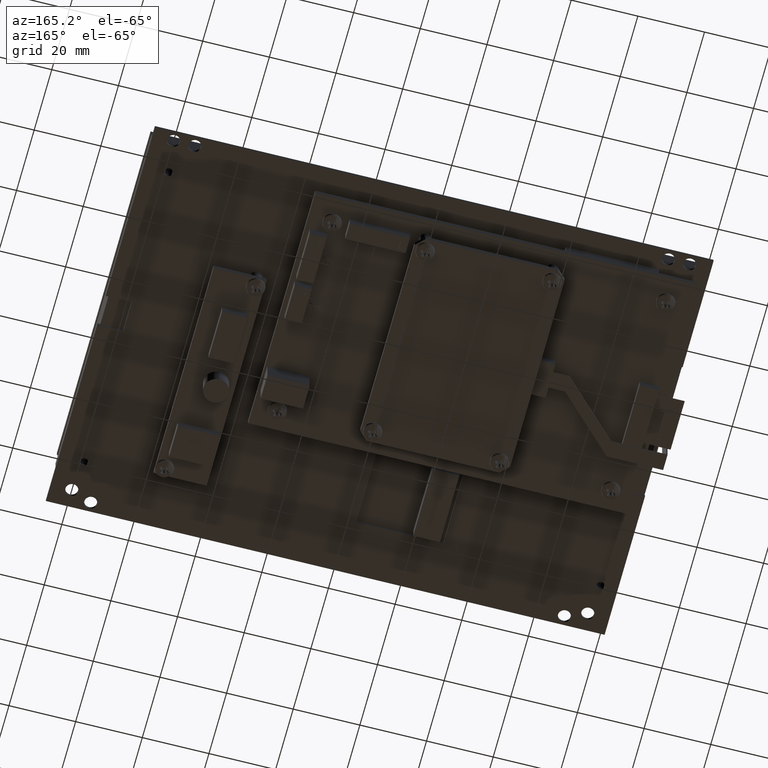
[diagram: clean part render]
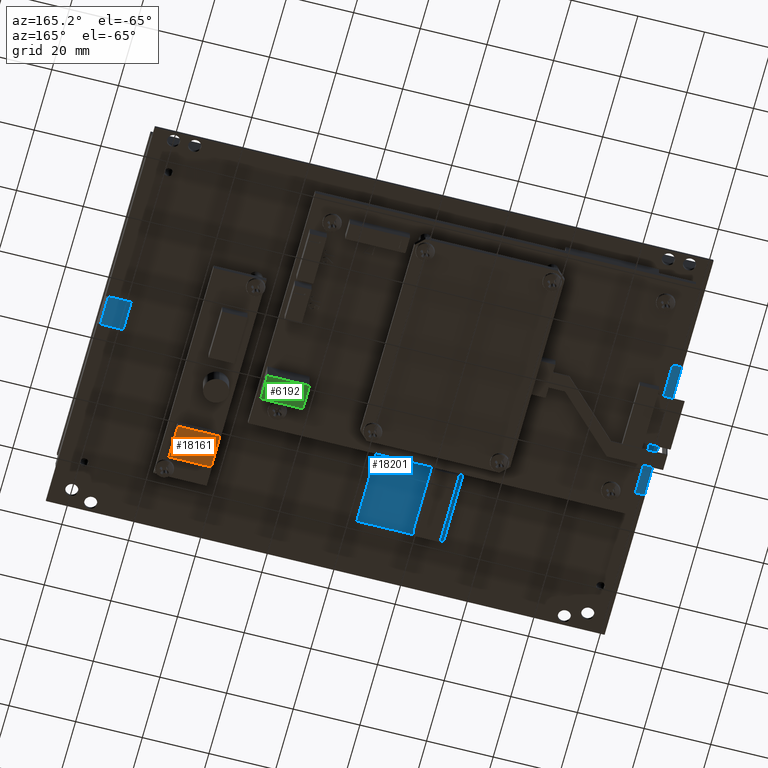
[diagram: same view with three faces highlighted in distinct colors, each labeled with its STEP entity id]
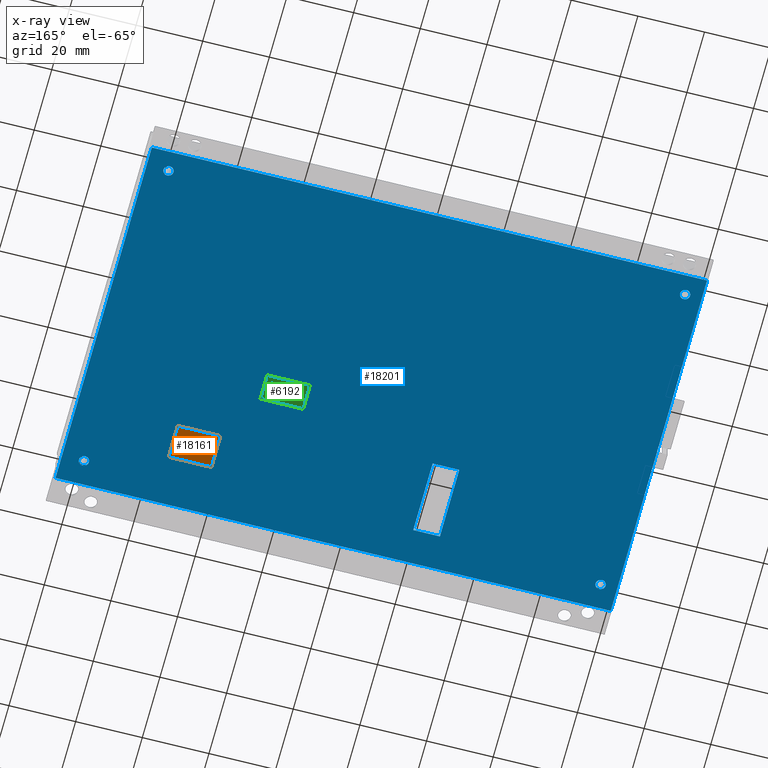
[diagram: x-ray of the same camera — body ghosted, the three highlighted faces saturated]
A machine part, auxiliary view with three faces highlighted in distinct colors.
The next image is the same camera in x-ray (body ghosted, the three faces saturated) — at least one of them is partly hidden behind the body in this view.
Their STEP definitions:

[orange] entity #18161 — the highlighted planar face has unit normal (-0, -0, 1).
#2835 = CARTESIAN_POINT ( 'NONE',  ( 0.2124999999999999900, 0.1890000000000000600, -0.6375000000000000700 ) ) ;
#4122 = CARTESIAN_POINT ( 'NONE',  ( -0.2874999999999998700, 0.1889999999999999700, -1.037500000000000100 ) ) ;
#5367 = VERTEX_POINT ( 'NONE', #2835 ) ;
#5932 = AXIS2_PLACEMENT_3D ( 'NONE', #12828, #12839, #12840 ) ;
#6475 = VECTOR ( 'NONE', #11934, 39.37007874015748100 ) ;
#6478 = VECTOR ( 'NONE', #11954, 39.37007874015748100 ) ;
#6480 = VECTOR ( 'NONE', #11967, 39.37007874015748100 ) ;
#6481 = VECTOR ( 'NONE', #11974, 39.37007874015748100 ) ;
#7542 = VERTEX_POINT ( 'NONE', #4122 ) ;
#8039 = ORIENTED_EDGE ( 'NONE', *, *, #17830, .T. ) ;
#8040 = ORIENTED_EDGE ( 'NONE', *, *, #17833, .T. ) ;
#8041 = ORIENTED_EDGE ( 'NONE', *, *, #17835, .T. ) ;
#8042 = ORIENTED_EDGE ( 'NONE', *, *, #17836, .T. ) ;
#10751 = CARTESIAN_POINT ( 'NONE',  ( -0.2874999999999998700, 0.1890000000000000600, -0.6375000000000000700 ) ) ;
#10753 = CARTESIAN_POINT ( 'NONE',  ( 0.2124999999999999900, 0.1889999999999999700, -1.037500000000000100 ) ) ;
#11928 = LINE ( 'NONE', #11932, #6475 ) ;
#11932 = CARTESIAN_POINT ( 'NONE',  ( 0.2124999999999999900, 0.1889999999999999700, -1.037500000000000100 ) ) ;
#11934 = DIRECTION ( 'NONE',  ( -7.360038173205668400E-032, 0.0000000000000000000, -1.000000000000000000 ) ) ;
#11949 = LINE ( 'NONE', #11952, #6478 ) ;
#11952 = CARTESIAN_POINT ( 'NONE',  ( 0.2124999999999999900, 0.1889999999999999700, -1.037500000000000100 ) ) ;
#11954 = DIRECTION ( 'NONE',  ( -1.000000000000000000, 0.0000000000000000000, -7.360038173205668400E-032 ) ) ;
#11962 = LINE ( 'NONE', #11965, #6480 ) ;
#11965 = CARTESIAN_POINT ( 'NONE',  ( -0.2874999999999998700, 0.1889999999999999700, -1.037500000000000100 ) ) ;
#11967 = DIRECTION ( 'NONE',  ( 7.360038173205668400E-032, 0.0000000000000000000, 1.000000000000000000 ) ) ;
#11969 = LINE ( 'NONE', #11972, #6481 ) ;
#11972 = CARTESIAN_POINT ( 'NONE',  ( 0.2124999999999999900, 0.1890000000000000600, -0.6375000000000000700 ) ) ;
#11974 = DIRECTION ( 'NONE',  ( 1.000000000000000000, 0.0000000000000000000, 7.360038173205668400E-032 ) ) ;
#12828 = CARTESIAN_POINT ( 'NONE',  ( 0.2124999999999999900, 0.1890000000000000600, -0.6375000000000000700 ) ) ;
#12836 = FACE_OUTER_BOUND ( 'NONE', #14484, .T. ) ;
#12837 = PLANE ( 'NONE',  #5932 ) ;
#12839 = DIRECTION ( 'NONE',  ( 0.0000000000000000000, -1.000000000000000000, -0.0000000000000000000 ) ) ;
#12840 = DIRECTION ( 'NONE',  ( -7.360038173205668400E-032, 0.0000000000000000000, -1.000000000000000000 ) ) ;
#14484 = EDGE_LOOP ( 'NONE', ( #8039, #8040, #8041, #8042 ) ) ;
#14530 = VERTEX_POINT ( 'NONE', #10751 ) ;
#14531 = VERTEX_POINT ( 'NONE', #10753 ) ;
#17830 = EDGE_CURVE ( 'NONE', #5367, #14531, #11928, .T. ) ;
#17833 = EDGE_CURVE ( 'NONE', #14531, #7542, #11949, .T. ) ;
#17835 = EDGE_CURVE ( 'NONE', #7542, #14530, #11962, .T. ) ;
#17836 = EDGE_CURVE ( 'NONE', #14530, #5367, #11969, .T. ) ;
#18161 = ADVANCED_FACE ( 'NONE', ( #12836 ), #12837, .F. ) ;

[blue] entity #18201 — the highlighted planar face has unit normal (0, 0, 1).
#1269 = CIRCLE ( 'NONE', #1280, 0.05905511811023627500 ) ;
#1280 = AXIS2_PLACEMENT_3D ( 'NONE', #10789, #10791, #10793 ) ;
#1281 = CIRCLE ( 'NONE', #1286, 0.05905511811023627500 ) ;
#1286 = AXIS2_PLACEMENT_3D ( 'NONE', #10819, #10821, #10823 ) ;
#1287 = CIRCLE ( 'NONE', #1292, 0.05905511811023627500 ) ;
#1292 = AXIS2_PLACEMENT_3D ( 'NONE', #10849, #10851, #10853 ) ;
#1293 = CIRCLE ( 'NONE', #1298, 0.05905511811023627500 ) ;
#1296 = VECTOR ( 'NONE', #10894, 39.37007874015748100 ) ;
#1298 = AXIS2_PLACEMENT_3D ( 'NONE', #10880, #10882, #10884 ) ;
#1299 = VECTOR ( 'NONE', #10900, 39.37007874015748100 ) ;
#1300 = VECTOR ( 'NONE', #10913, 39.37007874015748100 ) ;
#1301 = VECTOR ( 'NONE', #10907, 39.37007874015748100 ) ;
#1302 = CIRCLE ( 'NONE', #1305, 0.05905511811023627500 ) ;
#1304 = CIRCLE ( 'NONE', #1307, 0.05905511811023627500 ) ;
#1305 = AXIS2_PLACEMENT_3D ( 'NONE', #10919, #10921, #10923 ) ;
#1306 = CIRCLE ( 'NONE', #1309, 0.05905511811023627500 ) ;
#1307 = AXIS2_PLACEMENT_3D ( 'NONE', #10927, #10929, #10931 ) ;
#1308 = CIRCLE ( 'NONE', #1311, 0.05905511811023627500 ) ;
#1309 = AXIS2_PLACEMENT_3D ( 'NONE', #10937, #10939, #10941 ) ;
#1310 = VECTOR ( 'NONE', #10954, 39.37007874015748100 ) ;
#1311 = AXIS2_PLACEMENT_3D ( 'NONE', #10947, #10949, #10951 ) ;
#1312 = VECTOR ( 'NONE', #10961, 39.37007874015748100 ) ;
#1313 = VECTOR ( 'NONE', #10968, 39.37007874015748100 ) ;
#1314 = VECTOR ( 'NONE', #10975, 39.37007874015748100 ) ;
#5972 = AXIS2_PLACEMENT_3D ( 'NONE', #13044, #13048, #13049 ) ;
#8412 = VERTEX_POINT ( 'NONE', #9325 ) ;
#8420 = VERTEX_POINT ( 'NONE', #9333 ) ;
#8427 = VERTEX_POINT ( 'NONE', #9339 ) ;
#8428 = VERTEX_POINT ( 'NONE', #9340 ) ;
#8433 = VERTEX_POINT ( 'NONE', #9343 ) ;
#8435 = VERTEX_POINT ( 'NONE', #9344 ) ;
#8439 = VERTEX_POINT ( 'NONE', #9347 ) ;
#8441 = VERTEX_POINT ( 'NONE', #9348 ) ;
#8442 = VERTEX_POINT ( 'NONE', #9349 ) ;
#8444 = VERTEX_POINT ( 'NONE', #9350 ) ;
#8445 = VERTEX_POINT ( 'NONE', #9351 ) ;
#8447 = VERTEX_POINT ( 'NONE', #9352 ) ;
#8448 = VERTEX_POINT ( 'NONE', #9353 ) ;
#8450 = VERTEX_POINT ( 'NONE', #9354 ) ;
#8455 = VERTEX_POINT ( 'NONE', #9357 ) ;
#8456 = VERTEX_POINT ( 'NONE', #9358 ) ;
#9325 = CARTESIAN_POINT ( 'NONE',  ( -1.153543307086614100, -1.744094488188976600, 0.0000000000000000000 ) ) ;
#9333 = CARTESIAN_POINT ( 'NONE',  ( 3.279527559055118100, 2.153543307086614300, 0.0000000000000000000 ) ) ;
#9339 = CARTESIAN_POINT ( 'NONE',  ( 3.078740157480314800, -1.862204724409448600, 0.0000000000000000000 ) ) ;
#9340 = CARTESIAN_POINT ( 'NONE',  ( 2.960629921259842100, -1.862204724409448600, -0.0000000000000000000 ) ) ;
#9343 = CARTESIAN_POINT ( 'NONE',  ( -3.023622047244094400, -1.862204724409448400, 0.0000000000000000000 ) ) ;
#9344 = CARTESIAN_POINT ( 'NONE',  ( -3.141732283464566700, -1.862204724409448400, 0.0000000000000000000 ) ) ;
#9347 = CARTESIAN_POINT ( 'NONE',  ( -3.023622047244094400, 1.917322834645669700, 0.0000000000000000000 ) ) ;
#9348 = CARTESIAN_POINT ( 'NONE',  ( -3.141732283464566700, 1.917322834645669700, 0.0000000000000000000 ) ) ;
#9349 = CARTESIAN_POINT ( 'NONE',  ( -3.279527559055118100, 2.153543307086614300, 0.0000000000000000000 ) ) ;
#9350 = CARTESIAN_POINT ( 'NONE',  ( -3.279527559055118100, -2.153543307086614300, 0.0000000000000000000 ) ) ;
#9351 = CARTESIAN_POINT ( 'NONE',  ( 3.078740157480315300, 1.917322834645669700, 0.0000000000000000000 ) ) ;
#9352 = CARTESIAN_POINT ( 'NONE',  ( 2.960629921259842600, 1.917322834645669700, 0.0000000000000000000 ) ) ;
#9353 = CARTESIAN_POINT ( 'NONE',  ( -0.8385826771653542800, -1.744094488188976400, 0.0000000000000000000 ) ) ;
#9354 = CARTESIAN_POINT ( 'NONE',  ( 3.279527559055118100, -2.153543307086614800, 0.0000000000000000000 ) ) ;
#9357 = CARTESIAN_POINT ( 'NONE',  ( -1.153543307086614100, -0.8779527559055121400, 0.0000000000000000000 ) ) ;
#9358 = CARTESIAN_POINT ( 'NONE',  ( -0.8385826771653542800, -0.8779527559055121400, 0.0000000000000000000 ) ) ;
#10789 = CARTESIAN_POINT ( 'NONE',  ( 3.019685039370078300, -1.862204724409448600, -0.0000000000000000000 ) ) ;
#10791 = DIRECTION ( 'NONE',  ( 0.0000000000000000000, 0.0000000000000000000, -1.000000000000000000 ) ) ;
#10793 = DIRECTION ( 'NONE',  ( -1.000000000000000000, 0.0000000000000000000, 0.0000000000000000000 ) ) ;
#10819 = CARTESIAN_POINT ( 'NONE',  ( -3.082677165354330600, -1.862204724409448400, 0.0000000000000000000 ) ) ;
#10821 = DIRECTION ( 'NONE',  ( 0.0000000000000000000, 0.0000000000000000000, -1.000000000000000000 ) ) ;
#10823 = DIRECTION ( 'NONE',  ( -1.000000000000000000, 0.0000000000000000000, 0.0000000000000000000 ) ) ;
#10849 = CARTESIAN_POINT ( 'NONE',  ( -3.082677165354330600, 1.917322834645669700, 0.0000000000000000000 ) ) ;
#10851 = DIRECTION ( 'NONE',  ( 0.0000000000000000000, 0.0000000000000000000, -1.000000000000000000 ) ) ;
#10853 = DIRECTION ( 'NONE',  ( -1.000000000000000000, 0.0000000000000000000, 0.0000000000000000000 ) ) ;
#10876 = LINE ( 'NONE', #10896, #1299 ) ;
#10878 = LINE ( 'NONE', #10890, #1296 ) ;
#10880 = CARTESIAN_POINT ( 'NONE',  ( 3.019685039370079100, 1.917322834645669700, 0.0000000000000000000 ) ) ;
#10882 = DIRECTION ( 'NONE',  ( 0.0000000000000000000, 0.0000000000000000000, -1.000000000000000000 ) ) ;
#10884 = DIRECTION ( 'NONE',  ( -1.000000000000000000, 0.0000000000000000000, 0.0000000000000000000 ) ) ;
#10886 = LINE ( 'NONE', #10909, #1300 ) ;
#10890 = CARTESIAN_POINT ( 'NONE',  ( -3.279527559055118100, 2.153543307086614300, 0.0000000000000000000 ) ) ;
#10894 = DIRECTION ( 'NONE',  ( 0.0000000000000000000, -1.000000000000000000, 0.0000000000000000000 ) ) ;
#10896 = CARTESIAN_POINT ( 'NONE',  ( -3.279527559055118100, 2.153543307086614300, 0.0000000000000000000 ) ) ;
#10900 = DIRECTION ( 'NONE',  ( -1.000000000000000000, -0.0000000000000000000, -0.0000000000000000000 ) ) ;
#10902 = LINE ( 'NONE', #10905, #1301 ) ;
#10905 = CARTESIAN_POINT ( 'NONE',  ( 3.279527559055118100, 2.153543307086614300, 0.0000000000000000000 ) ) ;
#10907 = DIRECTION ( 'NONE',  ( -0.0000000000000000000, 1.000000000000000000, -0.0000000000000000000 ) ) ;
#10909 = CARTESIAN_POINT ( 'NONE',  ( -3.279527559055118100, -2.153543307086614300, 0.0000000000000000000 ) ) ;
#10913 = DIRECTION ( 'NONE',  ( 1.000000000000000000, -8.330004686563300100E-017, 0.0000000000000000000 ) ) ;
#10919 = CARTESIAN_POINT ( 'NONE',  ( 3.019685039370079100, 1.917322834645669700, 0.0000000000000000000 ) ) ;
#10921 = DIRECTION ( 'NONE',  ( 0.0000000000000000000, 0.0000000000000000000, -1.000000000000000000 ) ) ;
#10923 = DIRECTION ( 'NONE',  ( -1.000000000000000000, 0.0000000000000000000, 0.0000000000000000000 ) ) ;
#10927 = CARTESIAN_POINT ( 'NONE',  ( -3.082677165354330600, 1.917322834645669700, 0.0000000000000000000 ) ) ;
#10929 = DIRECTION ( 'NONE',  ( 0.0000000000000000000, 0.0000000000000000000, -1.000000000000000000 ) ) ;
#10931 = DIRECTION ( 'NONE',  ( -1.000000000000000000, 0.0000000000000000000, 0.0000000000000000000 ) ) ;
#10933 = LINE ( 'NONE', #10935, #1310 ) ;
#10935 = CARTESIAN_POINT ( 'NONE',  ( -1.153543307086614100, -1.744094488188976600, 0.0000000000000000000 ) ) ;
#10937 = CARTESIAN_POINT ( 'NONE',  ( -3.082677165354330600, -1.862204724409448400, 0.0000000000000000000 ) ) ;
#10939 = DIRECTION ( 'NONE',  ( 0.0000000000000000000, 0.0000000000000000000, -1.000000000000000000 ) ) ;
#10941 = DIRECTION ( 'NONE',  ( -1.000000000000000000, 0.0000000000000000000, 0.0000000000000000000 ) ) ;
#10947 = CARTESIAN_POINT ( 'NONE',  ( 3.019685039370078300, -1.862204724409448600, -0.0000000000000000000 ) ) ;
#10949 = DIRECTION ( 'NONE',  ( 0.0000000000000000000, 0.0000000000000000000, -1.000000000000000000 ) ) ;
#10951 = DIRECTION ( 'NONE',  ( -1.000000000000000000, 0.0000000000000000000, 0.0000000000000000000 ) ) ;
#10954 = DIRECTION ( 'NONE',  ( 0.0000000000000000000, 1.000000000000000000, 0.0000000000000000000 ) ) ;
#10956 = LINE ( 'NONE', #10959, #1312 ) ;
#10959 = CARTESIAN_POINT ( 'NONE',  ( -0.8385826771653542800, -1.744094488188976600, 0.0000000000000000000 ) ) ;
#10961 = DIRECTION ( 'NONE',  ( -1.000000000000000000, 0.0000000000000000000, 0.0000000000000000000 ) ) ;
#10963 = LINE ( 'NONE', #10966, #1313 ) ;
#10966 = CARTESIAN_POINT ( 'NONE',  ( -0.8385826771653542800, -1.744094488188976600, 0.0000000000000000000 ) ) ;
#10968 = DIRECTION ( 'NONE',  ( -0.0000000000000000000, -1.000000000000000000, -0.0000000000000000000 ) ) ;
#10970 = LINE ( 'NONE', #10973, #1314 ) ;
#10973 = CARTESIAN_POINT ( 'NONE',  ( -0.8385826771653542800, -0.8779527559055121400, 0.0000000000000000000 ) ) ;
#10975 = DIRECTION ( 'NONE',  ( 1.000000000000000000, -0.0000000000000000000, -0.0000000000000000000 ) ) ;
#13038 = FACE_BOUND ( 'NONE', #13827, .T. ) ;
#13039 = FACE_OUTER_BOUND ( 'NONE', #13825, .T. ) ;
#13040 = FACE_BOUND ( 'NONE', #13817, .T. ) ;
#13041 = FACE_BOUND ( 'NONE', #13821, .T. ) ;
#13043 = FACE_BOUND ( 'NONE', #13819, .T. ) ;
#13044 = CARTESIAN_POINT ( 'NONE',  ( -3.279527559055118100, 2.153543307086614300, 0.0000000000000000000 ) ) ;
#13045 = FACE_BOUND ( 'NONE', #13826, .T. ) ;
#13047 = PLANE ( 'NONE',  #5972 ) ;
#13048 = DIRECTION ( 'NONE',  ( -0.0000000000000000000, 0.0000000000000000000, 1.000000000000000000 ) ) ;
#13049 = DIRECTION ( 'NONE',  ( 1.000000000000000000, 0.0000000000000000000, 0.0000000000000000000 ) ) ;
#13817 = EDGE_LOOP ( 'NONE', ( #15118, #15119, #15120, #15121 ) ) ;
#13819 = EDGE_LOOP ( 'NONE', ( #15112, #15113 ) ) ;
#13821 = EDGE_LOOP ( 'NONE', ( #15110, #15111 ) ) ;
#13825 = EDGE_LOOP ( 'NONE', ( #15106, #15107, #15108, #15109 ) ) ;
#13826 = EDGE_LOOP ( 'NONE', ( #15114, #15115 ) ) ;
#13827 = EDGE_LOOP ( 'NONE', ( #15116, #15117 ) ) ;
#15106 = ORIENTED_EDGE ( 'NONE', *, *, #17926, .F. ) ;
#15107 = ORIENTED_EDGE ( 'NONE', *, *, #17927, .F. ) ;
#15108 = ORIENTED_EDGE ( 'NONE', *, *, #17928, .F. ) ;
#15109 = ORIENTED_EDGE ( 'NONE', *, *, #17929, .F. ) ;
#15110 = ORIENTED_EDGE ( 'NONE', *, *, #17930, .F. ) ;
#15111 = ORIENTED_EDGE ( 'NONE', *, *, #17924, .F. ) ;
#15112 = ORIENTED_EDGE ( 'NONE', *, *, #17931, .F. ) ;
#15113 = ORIENTED_EDGE ( 'NONE', *, *, #17920, .F. ) ;
#15114 = ORIENTED_EDGE ( 'NONE', *, *, #17932, .F. ) ;
#15115 = ORIENTED_EDGE ( 'NONE', *, *, #17916, .F. ) ;
#15116 = ORIENTED_EDGE ( 'NONE', *, *, #17933, .F. ) ;
#15117 = ORIENTED_EDGE ( 'NONE', *, *, #17912, .F. ) ;
#15118 = ORIENTED_EDGE ( 'NONE', *, *, #17934, .F. ) ;
#15119 = ORIENTED_EDGE ( 'NONE', *, *, #17935, .F. ) ;
#15120 = ORIENTED_EDGE ( 'NONE', *, *, #17936, .F. ) ;
#15121 = ORIENTED_EDGE ( 'NONE', *, *, #17937, .F. ) ;
#17912 = EDGE_CURVE ( 'NONE', #8427, #8428, #1269, .T. ) ;
#17916 = EDGE_CURVE ( 'NONE', #8433, #8435, #1281, .T. ) ;
#17920 = EDGE_CURVE ( 'NONE', #8439, #8441, #1287, .T. ) ;
#17924 = EDGE_CURVE ( 'NONE', #8445, #8447, #1293, .T. ) ;
#17926 = EDGE_CURVE ( 'NONE', #8442, #8444, #10878, .T. ) ;
#17927 = EDGE_CURVE ( 'NONE', #8420, #8442, #10876, .T. ) ;
#17928 = EDGE_CURVE ( 'NONE', #8450, #8420, #10902, .T. ) ;
#17929 = EDGE_CURVE ( 'NONE', #8444, #8450, #10886, .T. ) ;
#17930 = EDGE_CURVE ( 'NONE', #8447, #8445, #1302, .T. ) ;
#17931 = EDGE_CURVE ( 'NONE', #8441, #8439, #1304, .T. ) ;
#17932 = EDGE_CURVE ( 'NONE', #8435, #8433, #1306, .T. ) ;
#17933 = EDGE_CURVE ( 'NONE', #8428, #8427, #1308, .T. ) ;
#17934 = EDGE_CURVE ( 'NONE', #8412, #8455, #10933, .T. ) ;
#17935 = EDGE_CURVE ( 'NONE', #8448, #8412, #10956, .T. ) ;
#17936 = EDGE_CURVE ( 'NONE', #8456, #8448, #10963, .T. ) ;
#17937 = EDGE_CURVE ( 'NONE', #8455, #8456, #10970, .T. ) ;
#18201 = ADVANCED_FACE ( 'NONE', ( #13039, #13041, #13043, #13045, #13038, #13040 ), #13047, .F. ) ;

[green] entity #6192 — the highlighted planar face has unit normal (-0, -0, 1).
#340 = ORIENTED_EDGE ( 'NONE', *, *, #526, .T. ) ;
#341 = ORIENTED_EDGE ( 'NONE', *, *, #527, .T. ) ;
#342 = ORIENTED_EDGE ( 'NONE', *, *, #528, .T. ) ;
#343 = ORIENTED_EDGE ( 'NONE', *, *, #529, .T. ) ;
#344 = ORIENTED_EDGE ( 'NONE', *, *, #530, .T. ) ;
#345 = ORIENTED_EDGE ( 'NONE', *, *, #531, .T. ) ;
#346 = ORIENTED_EDGE ( 'NONE', *, *, #18066, .T. ) ;
#347 = ORIENTED_EDGE ( 'NONE', *, *, #18069, .T. ) ;
#348 = ORIENTED_EDGE ( 'NONE', *, *, #524, .T. ) ;
#349 = ORIENTED_EDGE ( 'NONE', *, *, #525, .T. ) ;
#524 = EDGE_CURVE ( 'NONE', #14566, #14573, #20122, .T. ) ;
#525 = EDGE_CURVE ( 'NONE', #14573, #14568, #14519, .T. ) ;
#526 = EDGE_CURVE ( 'NONE', #14574, #14575, #20129, .T. ) ;
#527 = EDGE_CURVE ( 'NONE', #14575, #14579, #20080, .T. ) ;
#528 = EDGE_CURVE ( 'NONE', #14579, #14580, #20135, .T. ) ;
#529 = EDGE_CURVE ( 'NONE', #14580, #14581, #20138, .T. ) ;
#530 = EDGE_CURVE ( 'NONE', #14581, #14582, #20141, .T. ) ;
#531 = EDGE_CURVE ( 'NONE', #14582, #14574, #20144, .T. ) ;
#3190 = AXIS2_PLACEMENT_3D ( 'NONE', #3460, #3472, #3473 ) ;
#3460 = CARTESIAN_POINT ( 'NONE',  ( -1.719999999999992000, 0.3129999999999985600, 0.7499999999999963400 ) ) ;
#3465 = FACE_OUTER_BOUND ( 'NONE', #20111, .T. ) ;
#3469 = FACE_BOUND ( 'NONE', #20119, .T. ) ;
#3470 = PLANE ( 'NONE',  #3190 ) ;
#3472 = DIRECTION ( 'NONE',  ( -9.860761315262679100E-031, -1.000000000000000000, -9.860761315262708900E-032 ) ) ;
#3473 = DIRECTION ( 'NONE',  ( 2.320466015010062900E-030, 9.860761315262708900E-032, -1.000000000000000000 ) ) ;
#5785 = VECTOR ( 'NONE', #20140, 39.37007874015748100 ) ;
#5786 = VECTOR ( 'NONE', #20146, 39.37007874015748100 ) ;
#5787 = VECTOR ( 'NONE', #20134, 39.37007874015748900 ) ;
#5792 = VECTOR ( 'NONE', #20126, 39.37007874015748100 ) ;
#5793 = VECTOR ( 'NONE', #20143, 39.37007874015748100 ) ;
#5795 = VECTOR ( 'NONE', #20137, 39.37007874015748100 ) ;
#5798 = VECTOR ( 'NONE', #20128, 39.37007874015748100 ) ;
#5799 = VECTOR ( 'NONE', #20132, 39.37007874015748100 ) ;
#5832 = VECTOR ( 'NONE', #12299, 39.37007874015748100 ) ;
#5835 = VECTOR ( 'NONE', #12317, 39.37007874015748100 ) ;
#6192 = ADVANCED_FACE ( 'NONE', ( #3469, #3465 ), #3470, .F. ) ;
#10763 = CARTESIAN_POINT ( 'NONE',  ( -1.719999999999992000, 0.3129999999999985600, 0.7499999999999963400 ) ) ;
#10768 = CARTESIAN_POINT ( 'NONE',  ( -2.219999999999992200, 0.3129999999999981100, 0.7499999999999963400 ) ) ;
#10769 = CARTESIAN_POINT ( 'NONE',  ( -1.719999999999989300, 0.3129999999999998900, 1.049999999999994000 ) ) ;
#10773 = CARTESIAN_POINT ( 'NONE',  ( -2.219999999999992200, 0.3129999999999998900, 1.049999999999992700 ) ) ;
#10775 = CARTESIAN_POINT ( 'NONE',  ( -2.080131186728852100, 0.3129999999999981100, 0.8291281796336532600 ) ) ;
#10777 = CARTESIAN_POINT ( 'NONE',  ( -2.080131186728852100, 0.3129999999999981100, 0.8098974104028841000 ) ) ;
#10784 = CARTESIAN_POINT ( 'NONE',  ( -2.067310673908339300, 0.3129999999999981100, 0.8172341491849354200 ) ) ;
#10785 = CARTESIAN_POINT ( 'NONE',  ( -2.067310673908339300, 0.3129999999999981100, 0.8403461283516021600 ) ) ;
#10787 = CARTESIAN_POINT ( 'NONE',  ( -2.192310673908338900, 0.3129999999999981100, 0.8403461283516005000 ) ) ;
#10788 = CARTESIAN_POINT ( 'NONE',  ( -2.192310673908338900, 0.3129999999999981100, 0.8291281796336518200 ) ) ;
#12294 = LINE ( 'NONE', #12297, #5832 ) ;
#12297 = CARTESIAN_POINT ( 'NONE',  ( -1.719999999999992000, 0.3129999999999985600, 0.7499999999999963400 ) ) ;
#12299 = DIRECTION ( 'NONE',  ( 2.320466015010063200E-030, 9.860761315262708900E-032, -1.000000000000000000 ) ) ;
#12312 = LINE ( 'NONE', #12315, #5835 ) ;
#12315 = CARTESIAN_POINT ( 'NONE',  ( -1.719999999999992000, 0.3129999999999985600, 0.7499999999999963400 ) ) ;
#12317 = DIRECTION ( 'NONE',  ( -1.000000000000000000, -3.944304526105071300E-031, 2.221858401857429000E-030 ) ) ;
#14519 = LINE ( 'NONE', #20127, #5798 ) ;
#14566 = VERTEX_POINT ( 'NONE', #10768 ) ;
#14568 = VERTEX_POINT ( 'NONE', #10769 ) ;
#14571 = VERTEX_POINT ( 'NONE', #10763 ) ;
#14573 = VERTEX_POINT ( 'NONE', #10773 ) ;
#14574 = VERTEX_POINT ( 'NONE', #10775 ) ;
#14575 = VERTEX_POINT ( 'NONE', #10777 ) ;
#14579 = VERTEX_POINT ( 'NONE', #10784 ) ;
#14580 = VERTEX_POINT ( 'NONE', #10785 ) ;
#14581 = VERTEX_POINT ( 'NONE', #10787 ) ;
#14582 = VERTEX_POINT ( 'NONE', #10788 ) ;
#18066 = EDGE_CURVE ( 'NONE', #14568, #14571, #12294, .T. ) ;
#18069 = EDGE_CURVE ( 'NONE', #14571, #14566, #12312, .T. ) ;
#20080 = LINE ( 'NONE', #20133, #5787 ) ;
#20111 = EDGE_LOOP ( 'NONE', ( #346, #347, #348, #349 ) ) ;
#20119 = EDGE_LOOP ( 'NONE', ( #340, #341, #342, #343, #344, #345 ) ) ;
#20122 = LINE ( 'NONE', #20124, #5792 ) ;
#20124 = CARTESIAN_POINT ( 'NONE',  ( -2.219999999999992200, 0.3129999999999981100, 0.7499999999999963400 ) ) ;
#20126 = DIRECTION ( 'NONE',  ( -2.320466015010063200E-030, -9.860761315262708900E-032, 1.000000000000000000 ) ) ;
#20127 = CARTESIAN_POINT ( 'NONE',  ( -1.719999999999989300, 0.3129999999999998900, 1.049999999999994000 ) ) ;
#20128 = DIRECTION ( 'NONE',  ( 1.000000000000000000, 3.944304526105071300E-031, -2.731847993664279500E-016 ) ) ;
#20129 = LINE ( 'NONE', #20131, #5799 ) ;
#20131 = CARTESIAN_POINT ( 'NONE',  ( -2.080131186728852100, 0.3129999999999981100, 0.8291281796336532600 ) ) ;
#20132 = DIRECTION ( 'NONE',  ( 2.320466015010063200E-030, 9.860761315262708900E-032, -1.000000000000000000 ) ) ;
#20133 = CARTESIAN_POINT ( 'NONE',  ( -2.080131186728852100, 0.3129999999999981100, 0.8098974104028841000 ) ) ;
#20134 = DIRECTION ( 'NONE',  ( 0.8679300138597061400, 2.465190328815672400E-031, 0.4966865118376885800 ) ) ;
#20135 = LINE ( 'NONE', #20136, #5795 ) ;
#20136 = CARTESIAN_POINT ( 'NONE',  ( -2.067310673908339300, 0.3129999999999981100, 0.8172341491849354200 ) ) ;
#20137 = DIRECTION ( 'NONE',  ( -2.320466015010063200E-030, -9.860761315262708900E-032, 1.000000000000000000 ) ) ;
#20138 = LINE ( 'NONE', #20139, #5785 ) ;
#20139 = CARTESIAN_POINT ( 'NONE',  ( -2.067310673908339300, 0.3129999999999981100, 0.8403461283516021600 ) ) ;
#20140 = DIRECTION ( 'NONE',  ( -1.000000000000000000, -3.944304526105071300E-031, 2.221858401857429000E-030 ) ) ;
#20141 = LINE ( 'NONE', #20142, #5793 ) ;
#20142 = CARTESIAN_POINT ( 'NONE',  ( -2.192310673908338900, 0.3129999999999981100, 0.8403461283516005000 ) ) ;
#20143 = DIRECTION ( 'NONE',  ( 2.320466015010063200E-030, 9.860761315262708900E-032, -1.000000000000000000 ) ) ;
#20144 = LINE ( 'NONE', #20145, #5786 ) ;
#20145 = CARTESIAN_POINT ( 'NONE',  ( -2.192310673908338900, 0.3129999999999981100, 0.8291281796336518200 ) ) ;
#20146 = DIRECTION ( 'NONE',  ( 1.000000000000000000, 3.944304526105071300E-031, -2.221858401857429000E-030 ) ) ;